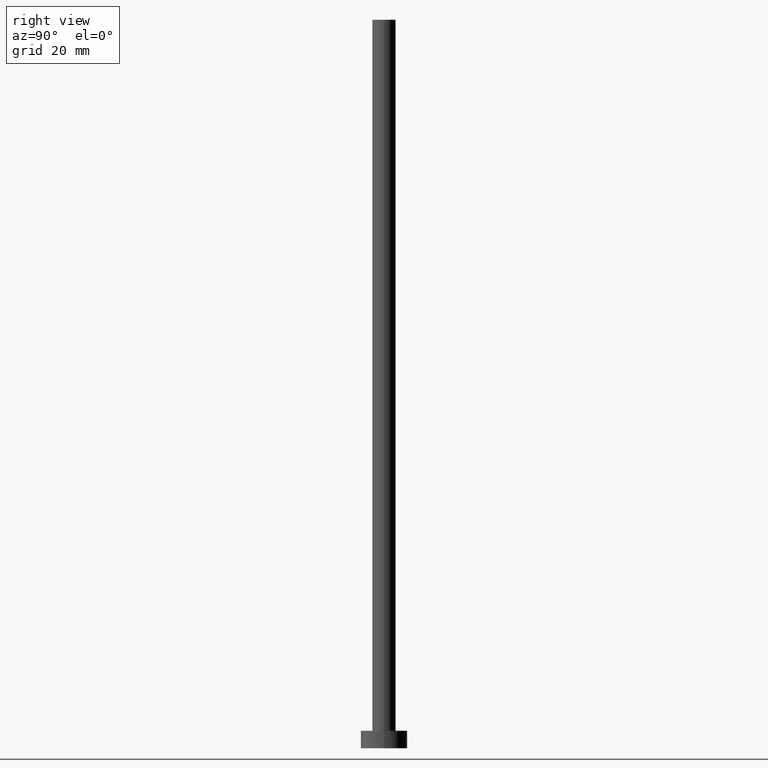
[diagram: clean part render]
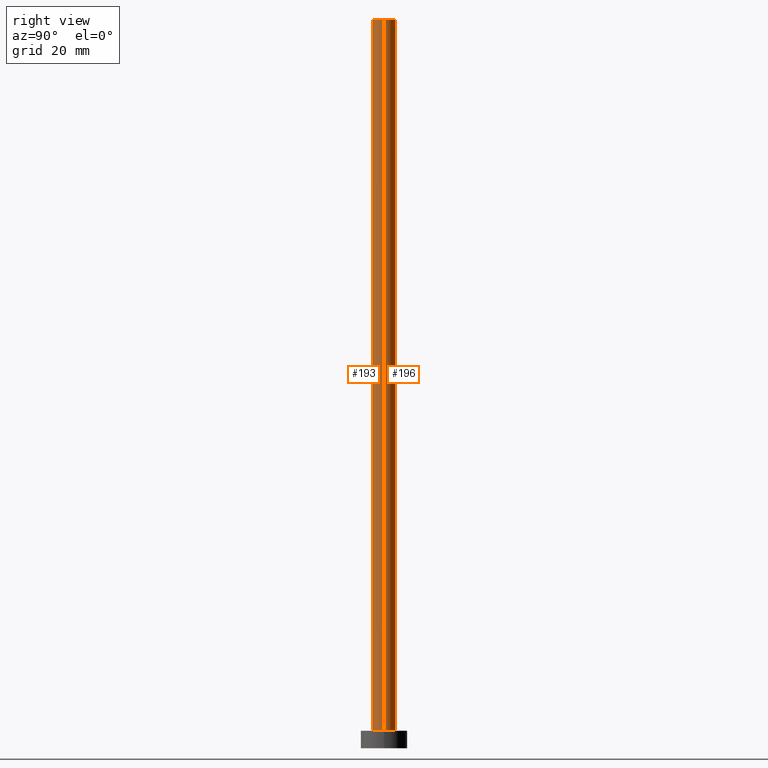
[diagram: same view with one multi-face feature highlighted, each face labeled with its STEP entity id]
A machine part, right view. The highlighted faces form ONE feature: a constant-radius fillet chain: 2 tangent blend faces with common blend radius 2 mm. The faces share edges in the B-rep.
Their STEP definitions:
[1] entity #193 (Cylinder):
#1 = DIRECTION ( 'NONE',  ( 0.000000000000000000, 0.000000000000000000, 1.000000000000000000 ) ) ;
#15 = VERTEX_POINT ( 'NONE', #41 ) ;
#17 = DIRECTION ( 'NONE',  ( 0.000000000000000000, 0.000000000000000000, 1.000000000000000000 ) ) ;
#19 = DIRECTION ( 'NONE',  ( -0.000000000000000000, -0.000000000000000000, -1.000000000000000000 ) ) ;
#30 = ORIENTED_EDGE ( 'NONE', *, *, #80, .F. ) ;
#41 = CARTESIAN_POINT ( 'NONE',  ( -2.000000000000000000, 0.000000000000000000, 125.0000000000000000 ) ) ;
#45 = VECTOR ( 'NONE', #251, 1000.000000000000000 ) ;
#46 = ORIENTED_EDGE ( 'NONE', *, *, #126, .F. ) ;
#61 = DIRECTION ( 'NONE',  ( -1.000000000000000000, 0.000000000000000000, 0.000000000000000000 ) ) ;
#66 = ORIENTED_EDGE ( 'NONE', *, *, #182, .T. ) ;
#77 = AXIS2_PLACEMENT_3D ( 'NONE', #107, #17, #148 ) ;
#80 = EDGE_CURVE ( 'NONE', #15, #236, #187, .T. ) ;
#86 = CARTESIAN_POINT ( 'NONE',  ( 0.000000000000000000, 0.000000000000000000, 125.0000000000000000 ) ) ;
#90 = CARTESIAN_POINT ( 'NONE',  ( 2.000000000000000000, 2.449293598294705921E-16, 125.0000000000000000 ) ) ;
#91 = CARTESIAN_POINT ( 'NONE',  ( 0.000000000000000000, 0.000000000000000000, 125.0000000000000000 ) ) ;
#107 = CARTESIAN_POINT ( 'NONE',  ( 0.000000000000000000, 0.000000000000000000, 3.000000000000000000 ) ) ;
#109 = DIRECTION ( 'NONE',  ( -0.000000000000000000, -0.000000000000000000, -1.000000000000000000 ) ) ;
#119 = VERTEX_POINT ( 'NONE', #224 ) ;
#126 = EDGE_CURVE ( 'NONE', #236, #143, #255, .T. ) ;
#131 = CARTESIAN_POINT ( 'NONE',  ( -2.000000000000000000, 0.000000000000000000, 125.0000000000000000 ) ) ;
#135 = AXIS2_PLACEMENT_3D ( 'NONE', #86, #19, #61 ) ;
#140 = EDGE_CURVE ( 'NONE', #15, #119, #249, .T. ) ;
#143 = VERTEX_POINT ( 'NONE', #165 ) ;
#148 = DIRECTION ( 'NONE',  ( 1.000000000000000000, 0.000000000000000000, 0.000000000000000000 ) ) ;
#153 = CIRCLE ( 'NONE', #77, 2.000000000000000000 ) ;
#161 = AXIS2_PLACEMENT_3D ( 'NONE', #91, #1, #253 ) ;
#165 = CARTESIAN_POINT ( 'NONE',  ( 2.000000000000000000, 2.449293598294705921E-16, 3.000000000000000000 ) ) ;
#182 = EDGE_CURVE ( 'NONE', #119, #143, #153, .T. ) ;
#185 = CARTESIAN_POINT ( 'NONE',  ( 2.000000000000000000, 2.449293598294705921E-16, 125.0000000000000000 ) ) ;
#186 = FACE_OUTER_BOUND ( 'NONE', #217, .T. ) ;
#187 = CIRCLE ( 'NONE', #161, 2.000000000000000000 ) ;
#193 = ADVANCED_FACE ( 'NONE', ( #186 ), #247, .T. ) ;
#200 = VECTOR ( 'NONE', #109, 1000.000000000000000 ) ;
#217 = EDGE_LOOP ( 'NONE', ( #46, #30, #219, #66 ) ) ;
#219 = ORIENTED_EDGE ( 'NONE', *, *, #140, .T. ) ;
#224 = CARTESIAN_POINT ( 'NONE',  ( -2.000000000000000000, 0.000000000000000000, 3.000000000000000000 ) ) ;
#236 = VERTEX_POINT ( 'NONE', #90 ) ;
#247 = CYLINDRICAL_SURFACE ( 'NONE', #135, 2.000000000000000000 ) ;
#249 = LINE ( 'NONE', #131, #200 ) ;
#251 = DIRECTION ( 'NONE',  ( -0.000000000000000000, -0.000000000000000000, -1.000000000000000000 ) ) ;
#253 = DIRECTION ( 'NONE',  ( 1.000000000000000000, 0.000000000000000000, 0.000000000000000000 ) ) ;
#255 = LINE ( 'NONE', #185, #45 ) ;
[2] entity #196 (Cylinder):
#2 = AXIS2_PLACEMENT_3D ( 'NONE', #127, #205, #32 ) ;
#15 = VERTEX_POINT ( 'NONE', #41 ) ;
#16 = AXIS2_PLACEMENT_3D ( 'NONE', #210, #96, #191 ) ;
#29 = EDGE_LOOP ( 'NONE', ( #160, #125, #199, #43 ) ) ;
#31 = EDGE_CURVE ( 'NONE', #143, #119, #171, .T. ) ;
#32 = DIRECTION ( 'NONE',  ( 1.000000000000000000, 0.000000000000000000, 0.000000000000000000 ) ) ;
#41 = CARTESIAN_POINT ( 'NONE',  ( -2.000000000000000000, 0.000000000000000000, 125.0000000000000000 ) ) ;
#43 = ORIENTED_EDGE ( 'NONE', *, *, #140, .F. ) ;
#45 = VECTOR ( 'NONE', #251, 1000.000000000000000 ) ;
#72 = EDGE_CURVE ( 'NONE', #236, #15, #117, .T. ) ;
#90 = CARTESIAN_POINT ( 'NONE',  ( 2.000000000000000000, 2.449293598294705921E-16, 125.0000000000000000 ) ) ;
#96 = DIRECTION ( 'NONE',  ( 0.000000000000000000, 0.000000000000000000, 1.000000000000000000 ) ) ;
#109 = DIRECTION ( 'NONE',  ( -0.000000000000000000, -0.000000000000000000, -1.000000000000000000 ) ) ;
#117 = CIRCLE ( 'NONE', #16, 2.000000000000000000 ) ;
#119 = VERTEX_POINT ( 'NONE', #224 ) ;
#125 = ORIENTED_EDGE ( 'NONE', *, *, #126, .T. ) ;
#126 = EDGE_CURVE ( 'NONE', #236, #143, #255, .T. ) ;
#127 = CARTESIAN_POINT ( 'NONE',  ( 0.000000000000000000, 0.000000000000000000, 3.000000000000000000 ) ) ;
#131 = CARTESIAN_POINT ( 'NONE',  ( -2.000000000000000000, 0.000000000000000000, 125.0000000000000000 ) ) ;
#138 = DIRECTION ( 'NONE',  ( -0.000000000000000000, -0.000000000000000000, -1.000000000000000000 ) ) ;
#140 = EDGE_CURVE ( 'NONE', #15, #119, #249, .T. ) ;
#143 = VERTEX_POINT ( 'NONE', #165 ) ;
#154 = CARTESIAN_POINT ( 'NONE',  ( 0.000000000000000000, 0.000000000000000000, 125.0000000000000000 ) ) ;
#160 = ORIENTED_EDGE ( 'NONE', *, *, #72, .F. ) ;
#165 = CARTESIAN_POINT ( 'NONE',  ( 2.000000000000000000, 2.449293598294705921E-16, 3.000000000000000000 ) ) ;
#171 = CIRCLE ( 'NONE', #2, 2.000000000000000000 ) ;
#185 = CARTESIAN_POINT ( 'NONE',  ( 2.000000000000000000, 2.449293598294705921E-16, 125.0000000000000000 ) ) ;
#191 = DIRECTION ( 'NONE',  ( 1.000000000000000000, 0.000000000000000000, 0.000000000000000000 ) ) ;
#195 = DIRECTION ( 'NONE',  ( -1.000000000000000000, 0.000000000000000000, 0.000000000000000000 ) ) ;
#196 = ADVANCED_FACE ( 'NONE', ( #234 ), #214, .T. ) ;
#199 = ORIENTED_EDGE ( 'NONE', *, *, #31, .T. ) ;
#200 = VECTOR ( 'NONE', #109, 1000.000000000000000 ) ;
#205 = DIRECTION ( 'NONE',  ( 0.000000000000000000, 0.000000000000000000, 1.000000000000000000 ) ) ;
#206 = AXIS2_PLACEMENT_3D ( 'NONE', #154, #138, #195 ) ;
#210 = CARTESIAN_POINT ( 'NONE',  ( 0.000000000000000000, 0.000000000000000000, 125.0000000000000000 ) ) ;
#214 = CYLINDRICAL_SURFACE ( 'NONE', #206, 2.000000000000000000 ) ;
#224 = CARTESIAN_POINT ( 'NONE',  ( -2.000000000000000000, 0.000000000000000000, 3.000000000000000000 ) ) ;
#234 = FACE_OUTER_BOUND ( 'NONE', #29, .T. ) ;
#236 = VERTEX_POINT ( 'NONE', #90 ) ;
#249 = LINE ( 'NONE', #131, #200 ) ;
#251 = DIRECTION ( 'NONE',  ( -0.000000000000000000, -0.000000000000000000, -1.000000000000000000 ) ) ;
#255 = LINE ( 'NONE', #185, #45 ) ;